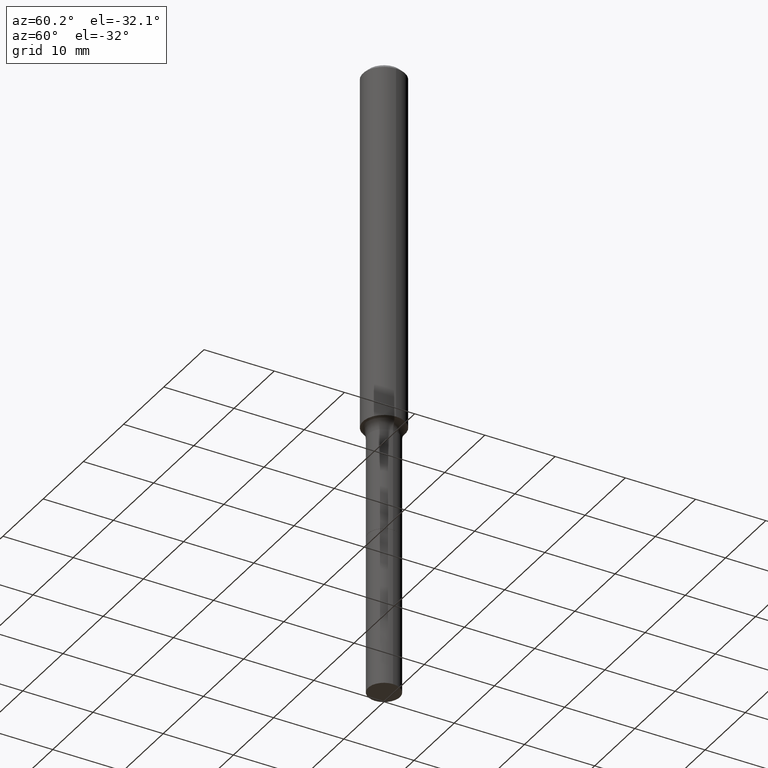
[diagram: clean part render]
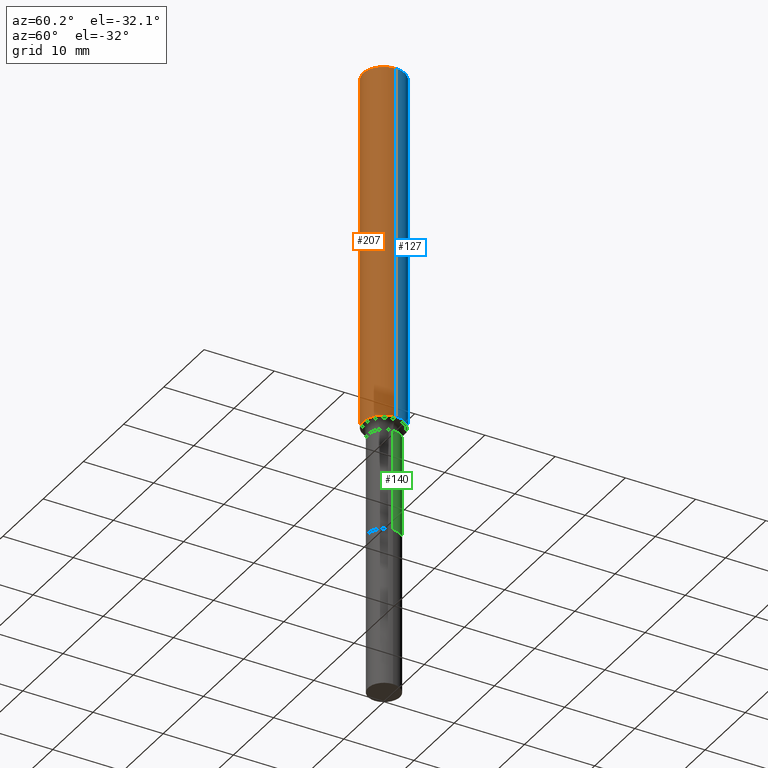
[diagram: same view with three faces highlighted in distinct colors, each labeled with its STEP entity id]
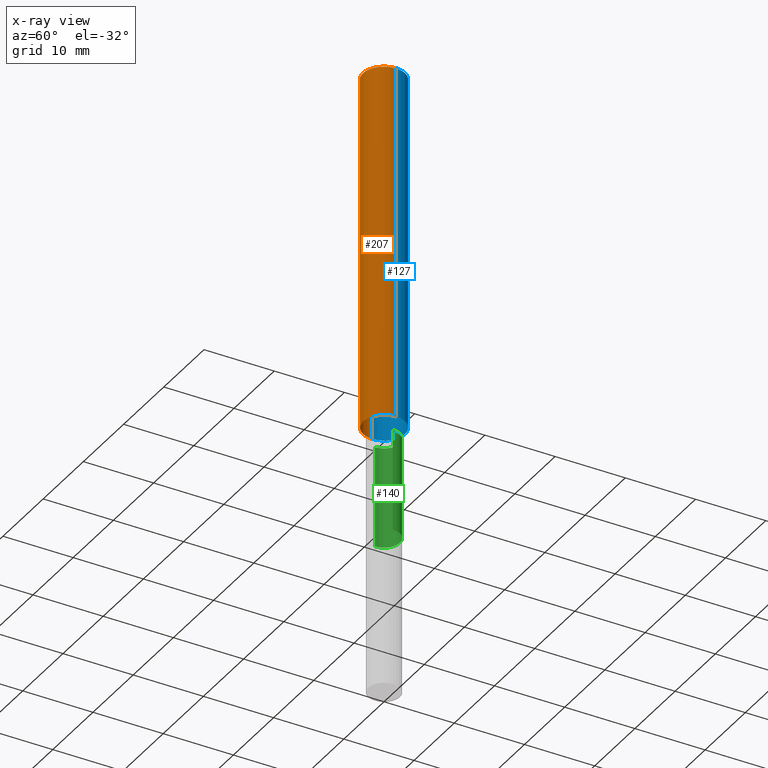
[diagram: x-ray of the same camera — body ghosted, the three highlighted faces saturated]
A machine part, auxiliary view with three faces highlighted in distinct colors.
The next image is the same camera in x-ray (body ghosted, the three faces saturated) — at least one of them is partly hidden behind the body in this view.
Their STEP definitions:

[orange] entity #207 — the highlighted cylindrical surface (edge-blend (fillet) strip) has radius 2.9997 mm, axis along (-0, 0, 1).
#47 = EDGE_CURVE ( 'NONE', #153, #367, #329, .T. ) ;
#50 = VECTOR ( 'NONE', #175, 39.37007874015748143 ) ;
#84 = DIRECTION ( 'NONE',  ( -2.445468806185136877E-29, 3.491481338843145188E-15, 1.000000000000000000 ) ) ;
#92 = CARTESIAN_POINT ( 'NONE',  ( -0.1181000000000002603, -6.224647477800412378E-15, -2.023152285005076045 ) ) ;
#99 = CYLINDRICAL_SURFACE ( 'NONE', #377, 0.1181000000000001354 ) ;
#121 = ORIENTED_EDGE ( 'NONE', *, *, #174, .F. ) ;
#152 = FACE_OUTER_BOUND ( 'NONE', #509, .T. ) ;
#153 = VERTEX_POINT ( 'NONE', #92 ) ;
#170 = CARTESIAN_POINT ( 'NONE',  ( 5.776197320209331911E-31, -8.246878922347565456E-17, -0.02362000000000015823 ) ) ;
#171 = LINE ( 'NONE', #212, #50 ) ;
#174 = EDGE_CURVE ( 'NONE', #281, #322, #210, .T. ) ;
#175 = DIRECTION ( 'NONE',  ( -2.445468806185136877E-29, 3.491481338843145188E-15, 1.000000000000000000 ) ) ;
#178 = EDGE_CURVE ( 'NONE', #153, #281, #171, .T. ) ;
#205 = DIRECTION ( 'NONE',  ( 1.000000000000000000, -6.982962677686267499E-15, 0.000000000000000000 ) ) ;
#207 = ADVANCED_FACE ( 'NONE', ( #152 ), #99, .T. ) ;
#210 = CIRCLE ( 'NONE', #258, 0.1181000000000000105 ) ;
#212 = CARTESIAN_POINT ( 'NONE',  ( -0.1181000000000001354, 8.391509709326792818E-16, -5.809262341591050090E-30 ) ) ;
#219 = DIRECTION ( 'NONE',  ( 1.000000000000000000, -6.982962677686266711E-15, 4.876176775795936353E-29 ) ) ;
#226 = CARTESIAN_POINT ( 'NONE',  ( 0.1181000000000000105, -9.071566814582239172E-16, -0.02362000000000015823 ) ) ;
#233 = CARTESIAN_POINT ( 'NONE',  ( 0.1181000000000002603, -7.888486340967843571E-15, -2.023152285005076045 ) ) ;
#258 = AXIS2_PLACEMENT_3D ( 'NONE', #170, #327, #205 ) ;
#263 = ORIENTED_EDGE ( 'NONE', *, *, #178, .F. ) ;
#274 = CARTESIAN_POINT ( 'NONE',  ( 4.947555803142094619E-29, -7.063798448733092153E-15, -2.023152285005076045 ) ) ;
#281 = VERTEX_POINT ( 'NONE', #508 ) ;
#322 = VERTEX_POINT ( 'NONE', #226 ) ;
#327 = DIRECTION ( 'NONE',  ( -2.445468806185136597E-29, 3.491481338843145583E-15, 1.000000000000000000 ) ) ;
#329 = CIRCLE ( 'NONE', #371, 0.1181000000000002603 ) ;
#338 = CARTESIAN_POINT ( 'NONE',  ( 0.000000000000000000, 0.000000000000000000, 0.000000000000000000 ) ) ;
#367 = VERTEX_POINT ( 'NONE', #233 ) ;
#371 = AXIS2_PLACEMENT_3D ( 'NONE', #274, #434, #396 ) ;
#377 = AXIS2_PLACEMENT_3D ( 'NONE', #338, #429, #219 ) ;
#395 = VECTOR ( 'NONE', #84, 39.37007874015748143 ) ;
#396 = DIRECTION ( 'NONE',  ( 1.000000000000000000, -6.982962677686265133E-15, 0.000000000000000000 ) ) ;
#429 = DIRECTION ( 'NONE',  ( -2.445468806185136597E-29, 3.491481338843145583E-15, 1.000000000000000000 ) ) ;
#434 = DIRECTION ( 'NONE',  ( -2.445468806185136597E-29, 3.491481338843145583E-15, 1.000000000000000000 ) ) ;
#437 = LINE ( 'NONE', #440, #395 ) ;
#440 = CARTESIAN_POINT ( 'NONE',  ( 0.1181000000000001354, -8.246878922347490515E-16, 5.758764772215007447E-30 ) ) ;
#443 = EDGE_CURVE ( 'NONE', #367, #322, #437, .T. ) ;
#462 = ORIENTED_EDGE ( 'NONE', *, *, #443, .T. ) ;
#464 = ORIENTED_EDGE ( 'NONE', *, *, #47, .T. ) ;
#508 = CARTESIAN_POINT ( 'NONE',  ( -0.1181000000000000105, -2.733982648045603636E-15, -0.02362000000000015823 ) ) ;
#509 = EDGE_LOOP ( 'NONE', ( #263, #464, #462, #121 ) ) ;

[blue] entity #127 — the highlighted cylindrical surface (edge-blend (fillet) strip) has radius 2.9997 mm, axis along (-0, 0, 1).
#12 = DIRECTION ( 'NONE',  ( -2.445468806185136597E-29, 3.491481338843145583E-15, 1.000000000000000000 ) ) ;
#50 = VECTOR ( 'NONE', #175, 39.37007874015748143 ) ;
#52 = CARTESIAN_POINT ( 'NONE',  ( 0.000000000000000000, 0.000000000000000000, 0.000000000000000000 ) ) ;
#66 = ORIENTED_EDGE ( 'NONE', *, *, #443, .F. ) ;
#74 = ORIENTED_EDGE ( 'NONE', *, *, #178, .T. ) ;
#84 = DIRECTION ( 'NONE',  ( -2.445468806185136877E-29, 3.491481338843145188E-15, 1.000000000000000000 ) ) ;
#92 = CARTESIAN_POINT ( 'NONE',  ( -0.1181000000000002603, -6.224647477800412378E-15, -2.023152285005076045 ) ) ;
#107 = ORIENTED_EDGE ( 'NONE', *, *, #416, .T. ) ;
#114 = CARTESIAN_POINT ( 'NONE',  ( 5.776197320209331911E-31, -8.246878922347565456E-17, -0.02362000000000015823 ) ) ;
#117 = DIRECTION ( 'NONE',  ( -2.445468806185136597E-29, 3.491481338843145583E-15, 1.000000000000000000 ) ) ;
#123 = CIRCLE ( 'NONE', #496, 0.1181000000000002603 ) ;
#127 = ADVANCED_FACE ( 'NONE', ( #491 ), #447, .T. ) ;
#153 = VERTEX_POINT ( 'NONE', #92 ) ;
#171 = LINE ( 'NONE', #212, #50 ) ;
#172 = AXIS2_PLACEMENT_3D ( 'NONE', #52, #12, #250 ) ;
#175 = DIRECTION ( 'NONE',  ( -2.445468806185136877E-29, 3.491481338843145188E-15, 1.000000000000000000 ) ) ;
#178 = EDGE_CURVE ( 'NONE', #153, #281, #171, .T. ) ;
#190 = EDGE_LOOP ( 'NONE', ( #107, #74, #418, #66 ) ) ;
#212 = CARTESIAN_POINT ( 'NONE',  ( -0.1181000000000001354, 8.391509709326792818E-16, -5.809262341591050090E-30 ) ) ;
#226 = CARTESIAN_POINT ( 'NONE',  ( 0.1181000000000000105, -9.071566814582239172E-16, -0.02362000000000015823 ) ) ;
#233 = CARTESIAN_POINT ( 'NONE',  ( 0.1181000000000002603, -7.888486340967843571E-15, -2.023152285005076045 ) ) ;
#250 = DIRECTION ( 'NONE',  ( 1.000000000000000000, -6.982962677686266711E-15, 4.876176775795936353E-29 ) ) ;
#252 = AXIS2_PLACEMENT_3D ( 'NONE', #114, #282, #516 ) ;
#280 = CARTESIAN_POINT ( 'NONE',  ( 4.947555803142094619E-29, -7.063798448733092153E-15, -2.023152285005076045 ) ) ;
#281 = VERTEX_POINT ( 'NONE', #508 ) ;
#282 = DIRECTION ( 'NONE',  ( -2.445468806185136597E-29, 3.491481338843145583E-15, 1.000000000000000000 ) ) ;
#301 = CIRCLE ( 'NONE', #252, 0.1181000000000000105 ) ;
#315 = DIRECTION ( 'NONE',  ( 1.000000000000000000, -6.982962677686265133E-15, 0.000000000000000000 ) ) ;
#322 = VERTEX_POINT ( 'NONE', #226 ) ;
#367 = VERTEX_POINT ( 'NONE', #233 ) ;
#395 = VECTOR ( 'NONE', #84, 39.37007874015748143 ) ;
#416 = EDGE_CURVE ( 'NONE', #367, #153, #123, .T. ) ;
#418 = ORIENTED_EDGE ( 'NONE', *, *, #470, .F. ) ;
#437 = LINE ( 'NONE', #440, #395 ) ;
#440 = CARTESIAN_POINT ( 'NONE',  ( 0.1181000000000001354, -8.246878922347490515E-16, 5.758764772215007447E-30 ) ) ;
#443 = EDGE_CURVE ( 'NONE', #367, #322, #437, .T. ) ;
#447 = CYLINDRICAL_SURFACE ( 'NONE', #172, 0.1181000000000001354 ) ;
#470 = EDGE_CURVE ( 'NONE', #322, #281, #301, .T. ) ;
#491 = FACE_OUTER_BOUND ( 'NONE', #190, .T. ) ;
#496 = AXIS2_PLACEMENT_3D ( 'NONE', #280, #117, #315 ) ;
#508 = CARTESIAN_POINT ( 'NONE',  ( -0.1181000000000000105, -2.733982648045603636E-15, -0.02362000000000015823 ) ) ;
#516 = DIRECTION ( 'NONE',  ( 1.000000000000000000, -6.982962677686267499E-15, 0.000000000000000000 ) ) ;

[green] entity #140 — the highlighted cylindrical surface (edge-blend (fillet) strip) has radius 2.2504 mm, axis along (-0, 0, 1).
#17 = CARTESIAN_POINT ( 'NONE',  ( -0.08859999999999995657, 6.295408638834484561E-16, -4.358176489965844866E-30 ) ) ;
#24 = CIRCLE ( 'NONE', #445, 0.08859999999999999820 ) ;
#25 = ORIENTED_EDGE ( 'NONE', *, *, #333, .T. ) ;
#27 = ORIENTED_EDGE ( 'NONE', *, *, #410, .F. ) ;
#33 = AXIS2_PLACEMENT_3D ( 'NONE', #81, #442, #198 ) ;
#78 = CARTESIAN_POINT ( 'NONE',  ( 0.08859999999999995657, -6.186904932430029529E-16, 4.320292623355197364E-30 ) ) ;
#81 = CARTESIAN_POINT ( 'NONE',  ( 5.101981570344049922E-29, -7.284277517228453725E-15, -2.086299999999999599 ) ) ;
#88 = CIRCLE ( 'NONE', #33, 0.08859999999999992881 ) ;
#89 = FACE_OUTER_BOUND ( 'NONE', #357, .T. ) ;
#94 = AXIS2_PLACEMENT_3D ( 'NONE', #485, #454, #373 ) ;
#102 = VERTEX_POINT ( 'NONE', #369 ) ;
#105 = VERTEX_POINT ( 'NONE', #136 ) ;
#120 = CARTESIAN_POINT ( 'NONE',  ( -0.08859999999999999820, -7.650681705250012498E-15, -2.656800000000000050 ) ) ;
#136 = CARTESIAN_POINT ( 'NONE',  ( -0.08859999999999992881, -7.650681705250012498E-15, -2.086299999999999599 ) ) ;
#140 = ADVANCED_FACE ( 'NONE', ( #89 ), #415, .T. ) ;
#163 = LINE ( 'NONE', #78, #186 ) ;
#186 = VECTOR ( 'NONE', #238, 39.37007874015748143 ) ;
#188 = VERTEX_POINT ( 'NONE', #331 ) ;
#198 = DIRECTION ( 'NONE',  ( 1.000000000000000000, -6.982962677686263555E-15, 0.000000000000000000 ) ) ;
#202 = VECTOR ( 'NONE', #463, 39.37007874015748143 ) ;
#229 = DIRECTION ( 'NONE',  ( 1.000000000000000000, -6.982962677686269077E-15, 0.000000000000000000 ) ) ;
#238 = DIRECTION ( 'NONE',  ( -2.445468806185136877E-29, 3.491481338843145188E-15, 1.000000000000000000 ) ) ;
#269 = ORIENTED_EDGE ( 'NONE', *, *, #306, .T. ) ;
#278 = ORIENTED_EDGE ( 'NONE', *, *, #502, .F. ) ;
#297 = CARTESIAN_POINT ( 'NONE',  ( 6.497121524272670718E-29, -9.276167621038468972E-15, -2.656800000000000050 ) ) ;
#304 = LINE ( 'NONE', #17, #202 ) ;
#306 = EDGE_CURVE ( 'NONE', #102, #444, #24, .T. ) ;
#331 = CARTESIAN_POINT ( 'NONE',  ( 0.08859999999999992881, -7.902968010471456678E-15, -2.086299999999999599 ) ) ;
#333 = EDGE_CURVE ( 'NONE', #444, #105, #304, .T. ) ;
#357 = EDGE_LOOP ( 'NONE', ( #269, #25, #27, #278 ) ) ;
#369 = CARTESIAN_POINT ( 'NONE',  ( 0.08859999999999999820, -9.894858114281471925E-15, -2.656800000000000050 ) ) ;
#373 = DIRECTION ( 'NONE',  ( 1.000000000000000000, -6.982962677686266711E-15, 4.876176775795936353E-29 ) ) ;
#410 = EDGE_CURVE ( 'NONE', #188, #105, #88, .T. ) ;
#415 = CYLINDRICAL_SURFACE ( 'NONE', #94, 0.08859999999999995657 ) ;
#442 = DIRECTION ( 'NONE',  ( -2.445468806185136597E-29, 3.491481338843145583E-15, 1.000000000000000000 ) ) ;
#444 = VERTEX_POINT ( 'NONE', #120 ) ;
#445 = AXIS2_PLACEMENT_3D ( 'NONE', #297, #461, #229 ) ;
#454 = DIRECTION ( 'NONE',  ( -2.445468806185136597E-29, 3.491481338843145583E-15, 1.000000000000000000 ) ) ;
#461 = DIRECTION ( 'NONE',  ( -2.445468806185136597E-29, 3.491481338843145583E-15, 1.000000000000000000 ) ) ;
#463 = DIRECTION ( 'NONE',  ( -2.445468806185136877E-29, 3.491481338843145188E-15, 1.000000000000000000 ) ) ;
#485 = CARTESIAN_POINT ( 'NONE',  ( 0.000000000000000000, 0.000000000000000000, 0.000000000000000000 ) ) ;
#502 = EDGE_CURVE ( 'NONE', #102, #188, #163, .T. ) ;